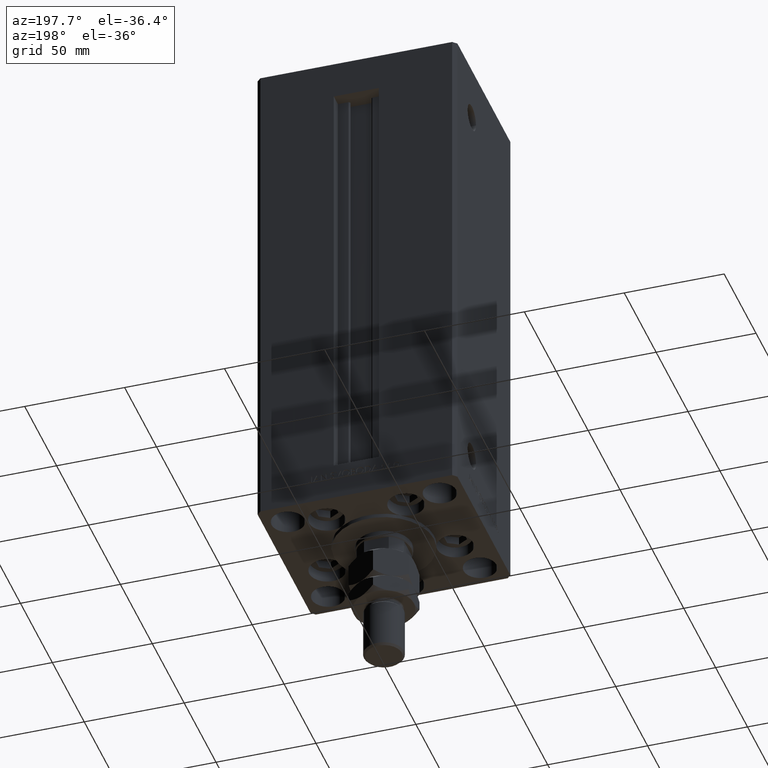
[diagram: clean part render]
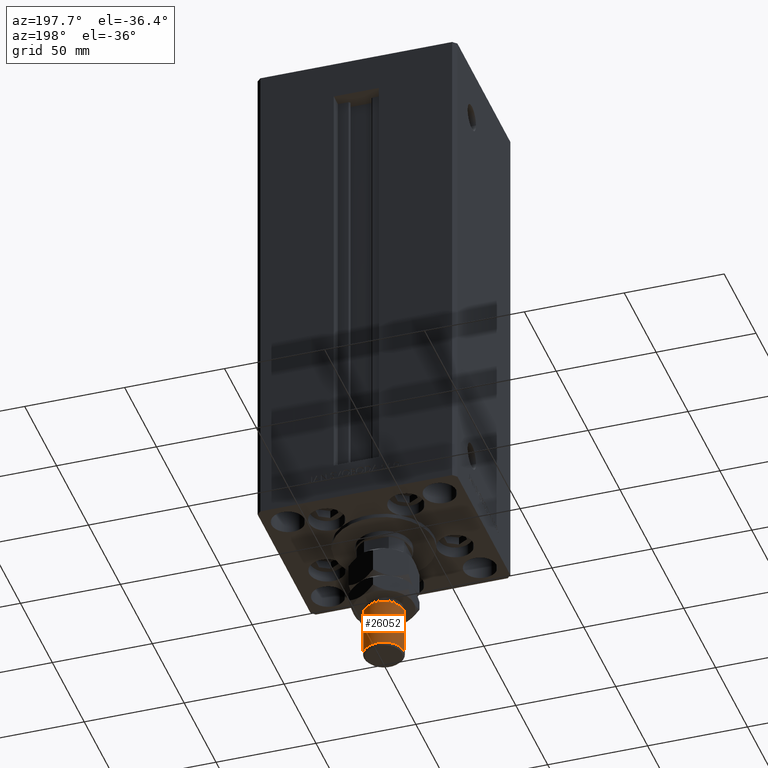
[diagram: same view with one face highlighted and labeled with its STEP entity id]
A machine part, auxiliary view. The second image highlights one B-rep face of the part: STEP entity #26052.
In plain terms, the highlighted cylindrical surface (edge-blend (fillet) strip) has radius 10 mm, axis along (0, -0, 1).
Its self-contained STEP definition (entity closure, byte-faithful):
#197 = EDGE_LOOP ( 'NONE', ( #43056, #51481, #31126, #49924 ) ) ;
#329 = CARTESIAN_POINT ( 'NONE',  ( -10.00000000000000000, 0.000000000000000000, 52.00000000000004974 ) ) ;
#859 = AXIS2_PLACEMENT_3D ( 'NONE', #7616, #39508, #24572 ) ;
#929 = CARTESIAN_POINT ( 'NONE',  ( 10.00000000000000000, 1.224646799147353059E-15, 52.00000000000004974 ) ) ;
#1921 = DIRECTION ( 'NONE',  ( -0.000000000000000000, -0.000000000000000000, -1.000000000000000000 ) ) ;
#2782 = LINE ( 'NONE', #7977, #26212 ) ;
#3817 = EDGE_CURVE ( 'NONE', #20087, #28204, #23417, .T. ) ;
#7438 = CARTESIAN_POINT ( 'NONE',  ( -10.00000000000000000, 0.000000000000000000, 53.00000000000000711 ) ) ;
#7616 = CARTESIAN_POINT ( 'NONE',  ( 0.000000000000000000, 0.000000000000000000, 52.00000000000004974 ) ) ;
#7977 = CARTESIAN_POINT ( 'NONE',  ( 10.00000000000000000, 1.224646799147353059E-15, 53.00000000000000711 ) ) ;
#8072 = VERTEX_POINT ( 'NONE', #37378 ) ;
#9229 = DIRECTION ( 'NONE',  ( -1.000000000000000000, 0.000000000000000000, 0.000000000000000000 ) ) ;
#9752 = EDGE_CURVE ( 'NONE', #48370, #8072, #13590, .T. ) ;
#13590 = CIRCLE ( 'NONE', #18655, 10.00000000000000000 ) ;
#13672 = AXIS2_PLACEMENT_3D ( 'NONE', #33280, #1921, #9229 ) ;
#13926 = VECTOR ( 'NONE', #36419, 1000.000000000000000 ) ;
#18655 = AXIS2_PLACEMENT_3D ( 'NONE', #33341, #49287, #28895 ) ;
#20087 = VERTEX_POINT ( 'NONE', #329 ) ;
#23417 = CIRCLE ( 'NONE', #859, 10.00000000000000000 ) ;
#24379 = LINE ( 'NONE', #7438, #13926 ) ;
#24572 = DIRECTION ( 'NONE',  ( 1.000000000000000000, 0.000000000000000000, 0.000000000000000000 ) ) ;
#26052 = ADVANCED_FACE ( 'NONE', ( #30399 ), #26224, .T. ) ;
#26212 = VECTOR ( 'NONE', #43032, 1000.000000000000000 ) ;
#26224 = CYLINDRICAL_SURFACE ( 'NONE', #13672, 10.00000000000000000 ) ;
#26291 = CARTESIAN_POINT ( 'NONE',  ( 10.00000000000000000, 1.224646799147353059E-15, 28.00000000000002487 ) ) ;
#28204 = VERTEX_POINT ( 'NONE', #929 ) ;
#28895 = DIRECTION ( 'NONE',  ( 1.000000000000000000, 0.000000000000000000, 0.000000000000000000 ) ) ;
#30399 = FACE_OUTER_BOUND ( 'NONE', #197, .T. ) ;
#30417 = EDGE_CURVE ( 'NONE', #28204, #48370, #2782, .T. ) ;
#31126 = ORIENTED_EDGE ( 'NONE', *, *, #9752, .T. ) ;
#33280 = CARTESIAN_POINT ( 'NONE',  ( 0.000000000000000000, 0.000000000000000000, 53.00000000000000711 ) ) ;
#33341 = CARTESIAN_POINT ( 'NONE',  ( 0.000000000000000000, 0.000000000000000000, 28.00000000000002487 ) ) ;
#36147 = EDGE_CURVE ( 'NONE', #20087, #8072, #24379, .T. ) ;
#36419 = DIRECTION ( 'NONE',  ( -0.000000000000000000, -0.000000000000000000, -1.000000000000000000 ) ) ;
#37378 = CARTESIAN_POINT ( 'NONE',  ( -10.00000000000000000, 0.000000000000000000, 28.00000000000002487 ) ) ;
#39508 = DIRECTION ( 'NONE',  ( 0.000000000000000000, 0.000000000000000000, -1.000000000000000000 ) ) ;
#43032 = DIRECTION ( 'NONE',  ( -0.000000000000000000, -0.000000000000000000, -1.000000000000000000 ) ) ;
#43056 = ORIENTED_EDGE ( 'NONE', *, *, #3817, .T. ) ;
#48370 = VERTEX_POINT ( 'NONE', #26291 ) ;
#49287 = DIRECTION ( 'NONE',  ( -0.000000000000000000, -0.000000000000000000, 1.000000000000000000 ) ) ;
#49924 = ORIENTED_EDGE ( 'NONE', *, *, #36147, .F. ) ;
#51481 = ORIENTED_EDGE ( 'NONE', *, *, #30417, .T. ) ;